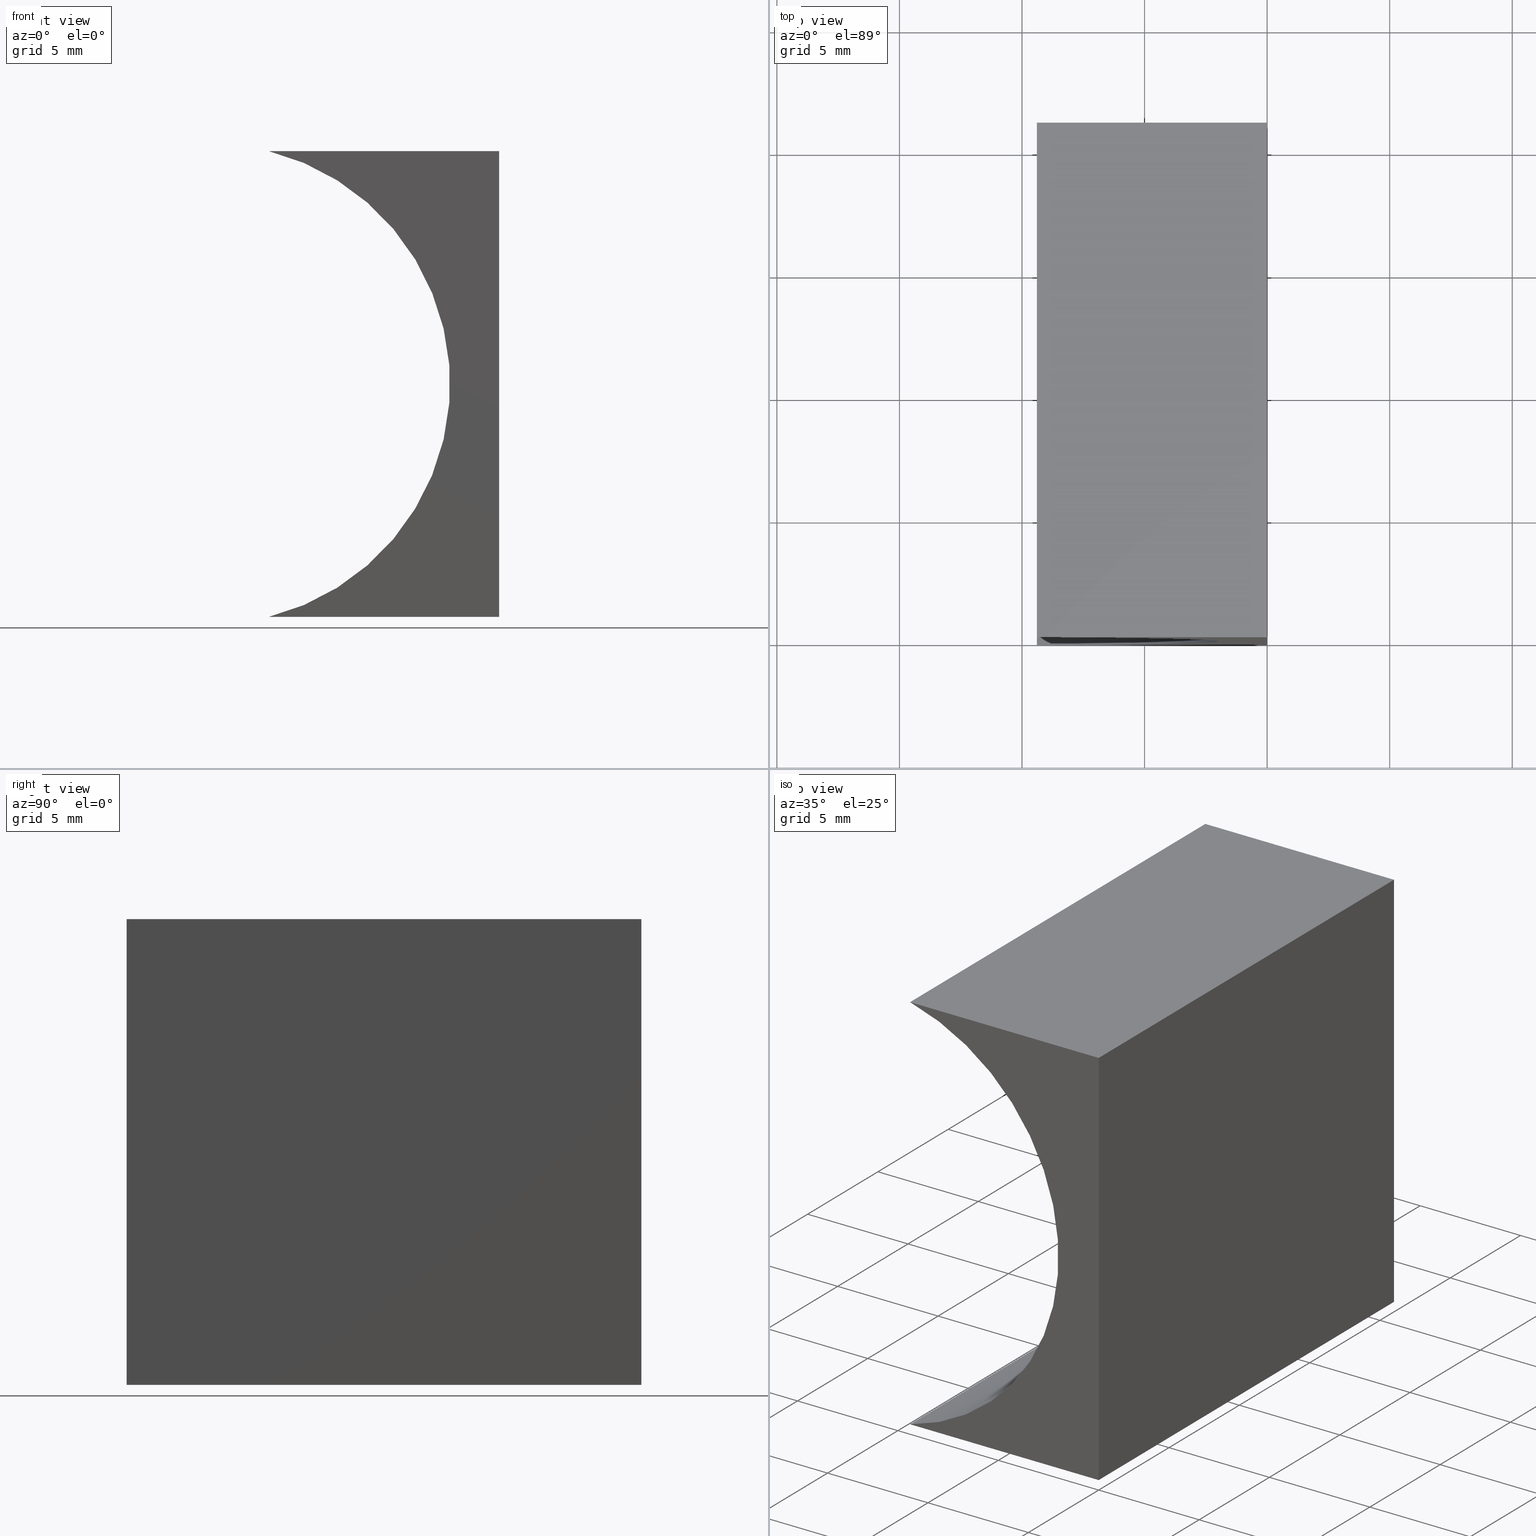
[diagram: canonical four-view strip — front | top / right | iso, engineering-drawing reading convention]
A machine part, canonical four-view strip (front | top / right | iso — engineering-drawing reading convention). The complete STEP part file that produces these views, byte-faithful:
ISO-10303-21;
HEADER;
FILE_DESCRIPTION (( 'STEP AP214' ),
    '1' );
FILE_NAME ('155344.STEP',
    '2019-06-28T02:36:14',
    ( 'user' ),
    ( '΢���й�' ),
    'SwSTEP 2.0',
    'SolidWorks 2016',
    '' );
FILE_SCHEMA (( 'AUTOMOTIVE_DESIGN' ));
ENDSEC;

DATA;
#1 = LINE ( 'NONE', #73, #2 ) ;
#2 = VECTOR ( 'NONE', #28, 1000.000000000000000 ) ;
#3 = VERTEX_POINT ( 'NONE', #93 ) ;
#4 = CARTESIAN_POINT ( 'NONE',  ( 0.0000000000000000000, 0.0000000000000000000, 0.0000000000000000000 ) ) ;
#5 = DIRECTION ( 'NONE',  ( 1.000000000000000000, -0.0000000000000000000, -3.693353510681764400E-016 ) ) ;
#6 = FACE_OUTER_BOUND ( 'NONE', #190, .T. ) ;
#7 = EDGE_LOOP ( 'NONE', ( #36, #173, #16, #20 ) ) ;
#8 = SURFACE_SIDE_STYLE ('',( #185 ) ) ;
#9 = DIRECTION ( 'NONE',  ( -0.0000000000000000000, -1.000000000000000000, -0.0000000000000000000 ) ) ;
#10 =( GEOMETRIC_REPRESENTATION_CONTEXT ( 3 ) GLOBAL_UNCERTAINTY_ASSIGNED_CONTEXT ( ( #51 ) ) GLOBAL_UNIT_ASSIGNED_CONTEXT ( ( #19, #32, #71 ) ) REPRESENTATION_CONTEXT ( 'NONE', 'WORKASPACE' ) );
#11 = DIRECTION ( 'NONE',  ( 1.000000000000000000, 0.0000000000000000000, -0.0000000000000000000 ) ) ;
#12 = ORIENTED_EDGE ( 'NONE', *, *, #199, .F. ) ;
#13 = CARTESIAN_POINT ( 'NONE',  ( -11.79999999999999900, 21.00000000000000000, 9.500000000000003600 ) ) ;
#14 = ORIENTED_EDGE ( 'NONE', *, *, #60, .F. ) ;
#15 = PRESENTATION_STYLE_ASSIGNMENT (( #127 ) ) ;
#16 = ORIENTED_EDGE ( 'NONE', *, *, #56, .T. ) ;
#17 = DIRECTION ( 'NONE',  ( -1.000000000000000000, 0.0000000000000000000, 3.693353510681765400E-016 ) ) ;
#18 = EDGE_CURVE ( 'NONE', #123, #200, #1, .T. ) ;
#19 =( LENGTH_UNIT ( ) NAMED_UNIT ( * ) SI_UNIT ( .MILLI., .METRE. ) );
#20 = ORIENTED_EDGE ( 'NONE', *, *, #158, .T. ) ;
#21 = CARTESIAN_POINT ( 'NONE',  ( 0.0000000000000000000, 0.0000000000000000000, 0.0000000000000000000 ) ) ;
#22 = ADVANCED_FACE ( 'NONE', ( #6 ), #46, .F. ) ;
#23 = STYLED_ITEM ( 'NONE', ( #84 ), #77 ) ;
#24 = DIRECTION ( 'NONE',  ( -0.0000000000000000000, -1.000000000000000000, -0.0000000000000000000 ) ) ;
#25 = ORIENTED_EDGE ( 'NONE', *, *, #174, .F. ) ;
#26 = CARTESIAN_POINT ( 'NONE',  ( 1.163414459189985500E-015, 0.0000000000000000000, 19.00000000000000000 ) ) ;
#27 = VECTOR ( 'NONE', #125, 1000.000000000000000 ) ;
#28 = DIRECTION ( 'NONE',  ( -0.0000000000000000000, -1.000000000000000000, -0.0000000000000000000 ) ) ;
#29 = ORIENTED_EDGE ( 'NONE', *, *, #143, .F. ) ;
#30 =( NAMED_UNIT ( * ) SI_UNIT ( $, .STERADIAN. ) SOLID_ANGLE_UNIT ( ) );
#31 = PRESENTATION_LAYER_ASSIGNMENT (  '', '', ( #34 ) ) ;
#32 =( NAMED_UNIT ( * ) PLANE_ANGLE_UNIT ( ) SI_UNIT ( $, .RADIAN. ) );
#33 = EDGE_LOOP ( 'NONE', ( #137, #194, #66, #155 ) ) ;
#34 = STYLED_ITEM ( 'NONE', ( #15 ), #177 ) ;
#35 = CARTESIAN_POINT ( 'NONE',  ( -11.79999999999999900, 0.0000000000000000000, 9.500000000000003600 ) ) ;
#36 = ORIENTED_EDGE ( 'NONE', *, *, #139, .T. ) ;
#37 = FILL_AREA_STYLE ('',( #162 ) ) ;
#38 = ORIENTED_EDGE ( 'NONE', *, *, #174, .T. ) ;
#39 = PRODUCT ( '155344', '155344', '', ( #64 ) ) ;
#40 = ADVANCED_FACE ( 'NONE', ( #76 ), #130, .F. ) ;
#41 = FACE_OUTER_BOUND ( 'NONE', #33, .T. ) ;
#42 = DIRECTION ( 'NONE',  ( -3.693353510681765400E-016, 0.0000000000000000000, -1.000000000000000000 ) ) ;
#43 = DIRECTION ( 'NONE',  ( 1.000000000000000000, -0.0000000000000000000, -3.693353510681764400E-016 ) ) ;
#44 = DIRECTION ( 'NONE',  ( -0.0000000000000000000, -1.000000000000000000, -0.0000000000000000000 ) ) ;
#45 = PLANE ( 'NONE',  #83 ) ;
#46 = PLANE ( 'NONE',  #167 ) ;
#47 = EDGE_CURVE ( 'NONE', #160, #63, #74, .T. ) ;
#48 = CARTESIAN_POINT ( 'NONE',  ( 0.0000000000000000000, 21.00000000000000000, 0.0000000000000000000 ) ) ;
#49 = FILL_AREA_STYLE_COLOUR ( '', #132 ) ;
#50 = ORIENTED_EDGE ( 'NONE', *, *, #158, .F. ) ;
#51 = UNCERTAINTY_MEASURE_WITH_UNIT (LENGTH_MEASURE( 1.000000000000000100E-005 ), #19, 'distance_accuracy_value', 'NONE');
#52 = DIRECTION ( 'NONE',  ( 0.0000000000000000000, 0.0000000000000000000, 1.000000000000000000 ) ) ;
#53 = VERTEX_POINT ( 'NONE', #88 ) ;
#54 = CARTESIAN_POINT ( 'NONE',  ( -9.393758116896808700, 0.0000000000000000000, 1.734723475976807100E-015 ) ) ;
#55 = APPLICATION_PROTOCOL_DEFINITION ( 'draft international standard', 'automotive_design', 1998, #140 ) ;
#56 = EDGE_CURVE ( 'NONE', #123, #150, #89, .T. ) ;
#57 = DIRECTION ( 'NONE',  ( 0.0000000000000000000, -0.0000000000000000000, 1.000000000000000000 ) ) ;
#58 = VERTEX_POINT ( 'NONE', #198 ) ;
#59 = PRODUCT_DEFINITION_CONTEXT ( 'detailed design', #140, 'design' ) ;
#60 = EDGE_CURVE ( 'NONE', #63, #200, #70, .T. ) ;
#61 = DIRECTION ( 'NONE',  ( -0.0000000000000000000, -1.000000000000000000, -0.0000000000000000000 ) ) ;
#62 = PRODUCT_DEFINITION_FORMATION_WITH_SPECIFIED_SOURCE ( '�κ�', '', #39, .NOT_KNOWN. ) ;
#63 = VERTEX_POINT ( 'NONE', #54 ) ;
#64 = PRODUCT_CONTEXT ( 'NONE', #65, 'mechanical' ) ;
#65 = APPLICATION_CONTEXT ( 'automotive_design' ) ;
#66 = ORIENTED_EDGE ( 'NONE', *, *, #56, .F. ) ;
#67 = ORIENTED_EDGE ( 'NONE', *, *, #18, .F. ) ;
#68 = AXIS2_PLACEMENT_3D ( 'NONE', #13, #61, #52 ) ;
#69 = DIRECTION ( 'NONE',  ( -0.0000000000000000000, -1.000000000000000000, -0.0000000000000000000 ) ) ;
#70 = CIRCLE ( 'NONE', #138, 9.800000000000000700 ) ;
#71 =( NAMED_UNIT ( * ) SI_UNIT ( $, .STERADIAN. ) SOLID_ANGLE_UNIT ( ) );
#72 = AXIS2_PLACEMENT_3D ( 'NONE', #116, #197, #126 ) ;
#73 = CARTESIAN_POINT ( 'NONE',  ( -9.393758116896805200, 21.00000000000000000, 19.00000000000000400 ) ) ;
#74 = LINE ( 'NONE', #87, #186 ) ;
#75 =( GEOMETRIC_REPRESENTATION_CONTEXT ( 3 ) GLOBAL_UNCERTAINTY_ASSIGNED_CONTEXT ( ( #108 ) ) GLOBAL_UNIT_ASSIGNED_CONTEXT ( ( #175, #157, #30 ) ) REPRESENTATION_CONTEXT ( 'NONE', 'WORKASPACE' ) );
#76 = FACE_OUTER_BOUND ( 'NONE', #192, .T. ) ;
#77 = ADVANCED_BREP_SHAPE_REPRESENTATION ( '155344', ( #177, #72 ), #95 ) ;
#78 = LINE ( 'NONE', #79, #117 ) ;
#79 = CARTESIAN_POINT ( 'NONE',  ( 0.0000000000000000000, 21.00000000000000000, 0.0000000000000000000 ) ) ;
#80 = LINE ( 'NONE', #21, #82 ) ;
#81 = COLOUR_RGB ( '',1.000000000000000000, 1.000000000000000000, 1.000000000000000000 ) ;
#82 = VECTOR ( 'NONE', #179, 1000.000000000000000 ) ;
#83 = AXIS2_PLACEMENT_3D ( 'NONE', #171, #149, #57 ) ;
#84 = PRESENTATION_STYLE_ASSIGNMENT (( #99 ) ) ;
#85 = VECTOR ( 'NONE', #5, 1000.000000000000000 ) ;
#86 = CARTESIAN_POINT ( 'NONE',  ( -9.393758116896805200, 0.0000000000000000000, 19.00000000000000400 ) ) ;
#87 = CARTESIAN_POINT ( 'NONE',  ( 0.0000000000000000000, 0.0000000000000000000, 0.0000000000000000000 ) ) ;
#88 = CARTESIAN_POINT ( 'NONE',  ( 0.0000000000000000000, 21.00000000000000000, 0.0000000000000000000 ) ) ;
#89 = LINE ( 'NONE', #97, #85 ) ;
#90 = DIRECTION ( 'NONE',  ( -1.000000000000000000, 0.0000000000000000000, 0.0000000000000000000 ) ) ;
#91 = DIRECTION ( 'NONE',  ( 0.0000000000000000000, 1.000000000000000000, 0.0000000000000000000 ) ) ;
#92 = FACE_OUTER_BOUND ( 'NONE', #169, .T. ) ;
#93 = CARTESIAN_POINT ( 'NONE',  ( 1.163414459189985500E-015, 0.0000000000000000000, 19.00000000000000000 ) ) ;
#94 = ORIENTED_EDGE ( 'NONE', *, *, #60, .T. ) ;
#95 =( GEOMETRIC_REPRESENTATION_CONTEXT ( 3 ) GLOBAL_UNCERTAINTY_ASSIGNED_CONTEXT ( ( #136 ) ) GLOBAL_UNIT_ASSIGNED_CONTEXT ( ( #112, #191, #110 ) ) REPRESENTATION_CONTEXT ( 'NONE', 'WORKASPACE' ) );
#96 = MECHANICAL_DESIGN_GEOMETRIC_PRESENTATION_REPRESENTATION (  '', ( #23 ), #10 ) ;
#97 = CARTESIAN_POINT ( 'NONE',  ( 1.163414459189985500E-015, 21.00000000000000000, 19.00000000000000000 ) ) ;
#98 = LINE ( 'NONE', #48, #146 ) ;
#99 = SURFACE_STYLE_USAGE ( .BOTH. , #8 ) ;
#100 = ADVANCED_FACE ( 'NONE', ( #41 ), #170, .F. ) ;
#101 = CARTESIAN_POINT ( 'NONE',  ( 1.163414459189985500E-015, 21.00000000000000000, 19.00000000000000000 ) ) ;
#102 = DIRECTION ( 'NONE',  ( -1.000000000000000000, 0.0000000000000000000, 6.123233995736767300E-017 ) ) ;
#103 = VECTOR ( 'NONE', #135, 1000.000000000000000 ) ;
#104 = ORIENTED_EDGE ( 'NONE', *, *, #196, .F. ) ;
#105 = CARTESIAN_POINT ( 'NONE',  ( 0.0000000000000000000, 21.00000000000000000, 0.0000000000000000000 ) ) ;
#106 = LINE ( 'NONE', #201, #103 ) ;
#107 = CARTESIAN_POINT ( 'NONE',  ( -9.393758116896805200, 21.00000000000000000, 19.00000000000000400 ) ) ;
#108 = UNCERTAINTY_MEASURE_WITH_UNIT (LENGTH_MEASURE( 1.000000000000000100E-005 ), #175, 'distance_accuracy_value', 'NONE');
#109 = EDGE_CURVE ( 'NONE', #3, #160, #80, .T. ) ;
#110 =( NAMED_UNIT ( * ) SI_UNIT ( $, .STERADIAN. ) SOLID_ANGLE_UNIT ( ) );
#111 = LINE ( 'NONE', #101, #128 ) ;
#112 =( LENGTH_UNIT ( ) NAMED_UNIT ( * ) SI_UNIT ( .MILLI., .METRE. ) );
#113 = LINE ( 'NONE', #181, #27 ) ;
#114 = CYLINDRICAL_SURFACE ( 'NONE', #152, 9.800000000000000700 ) ;
#115 = ORIENTED_EDGE ( 'NONE', *, *, #109, .T. ) ;
#116 = CARTESIAN_POINT ( 'NONE',  ( 0.0000000000000000000, 0.0000000000000000000, 0.0000000000000000000 ) ) ;
#117 = VECTOR ( 'NONE', #124, 1000.000000000000000 ) ;
#118 = ADVANCED_FACE ( 'NONE', ( #92 ), #114, .F. ) ;
#119 = AXIS2_PLACEMENT_3D ( 'NONE', #159, #102, #188 ) ;
#120 = SURFACE_STYLE_FILL_AREA ( #178 ) ;
#121 = ORIENTED_EDGE ( 'NONE', *, *, #139, .F. ) ;
#122 = FACE_OUTER_BOUND ( 'NONE', #165, .T. ) ;
#123 = VERTEX_POINT ( 'NONE', #107 ) ;
#124 = DIRECTION ( 'NONE',  ( -6.123233995736766000E-017, -0.0000000000000000000, -1.000000000000000000 ) ) ;
#125 = DIRECTION ( 'NONE',  ( -1.000000000000000000, 0.0000000000000000000, 0.0000000000000000000 ) ) ;
#126 = DIRECTION ( 'NONE',  ( 1.000000000000000000, 0.0000000000000000000, 0.0000000000000000000 ) ) ;
#127 = SURFACE_STYLE_USAGE ( .BOTH. , #145 ) ;
#128 = VECTOR ( 'NONE', #44, 1000.000000000000000 ) ;
#129 = MECHANICAL_DESIGN_GEOMETRIC_PRESENTATION_REPRESENTATION (  '', ( #34 ), #75 ) ;
#130 = PLANE ( 'NONE',  #119 ) ;
#131 = PRODUCT_DEFINITION_SHAPE ( 'NONE', 'NONE',  #166 ) ;
#132 = COLOUR_RGB ( '',1.000000000000000000, 1.000000000000000000, 1.000000000000000000 ) ;
#133 = ORIENTED_EDGE ( 'NONE', *, *, #147, .T. ) ;
#134 = VECTOR ( 'NONE', #43, 1000.000000000000000 ) ;
#135 = DIRECTION ( 'NONE',  ( -0.0000000000000000000, -1.000000000000000000, -0.0000000000000000000 ) ) ;
#136 = UNCERTAINTY_MEASURE_WITH_UNIT (LENGTH_MEASURE( 1.000000000000000100E-005 ), #112, 'distance_accuracy_value', 'NONE');
#137 = ORIENTED_EDGE ( 'NONE', *, *, #196, .T. ) ;
#138 = AXIS2_PLACEMENT_3D ( 'NONE', #144, #24, #184 ) ;
#139 = EDGE_CURVE ( 'NONE', #53, #58, #113, .T. ) ;
#140 = APPLICATION_CONTEXT ( 'automotive_design' ) ;
#141 = LINE ( 'NONE', #26, #134 ) ;
#142 = ORIENTED_EDGE ( 'NONE', *, *, #109, .F. ) ;
#143 = EDGE_CURVE ( 'NONE', #58, #63, #106, .T. ) ;
#144 = CARTESIAN_POINT ( 'NONE',  ( -11.79999999999999900, 0.0000000000000000000, 9.500000000000003600 ) ) ;
#145 = SURFACE_SIDE_STYLE ('',( #120 ) ) ;
#146 = VECTOR ( 'NONE', #69, 1000.000000000000000 ) ;
#147 = EDGE_CURVE ( 'NONE', #150, #3, #111, .T. ) ;
#148 = FACE_OUTER_BOUND ( 'NONE', #7, .T. ) ;
#149 = DIRECTION ( 'NONE',  ( 0.0000000000000000000, 1.000000000000000000, 0.0000000000000000000 ) ) ;
#150 = VERTEX_POINT ( 'NONE', #203 ) ;
#151 = PRESENTATION_LAYER_ASSIGNMENT (  '', '', ( #23 ) ) ;
#152 = AXIS2_PLACEMENT_3D ( 'NONE', #195, #9, #161 ) ;
#153 = CLOSED_SHELL ( 'NONE', ( #22, #118, #100, #40, #182, #168 ) ) ;
#154 = AXIS2_PLACEMENT_3D ( 'NONE', #35, #91, #163 ) ;
#155 = ORIENTED_EDGE ( 'NONE', *, *, #18, .T. ) ;
#156 = SHAPE_DEFINITION_REPRESENTATION ( #131, #77 ) ;
#157 =( NAMED_UNIT ( * ) PLANE_ANGLE_UNIT ( ) SI_UNIT ( $, .RADIAN. ) );
#158 = EDGE_CURVE ( 'NONE', #150, #53, #78, .T. ) ;
#159 = CARTESIAN_POINT ( 'NONE',  ( 0.0000000000000000000, 21.00000000000000000, 0.0000000000000000000 ) ) ;
#160 = VERTEX_POINT ( 'NONE', #4 ) ;
#161 = DIRECTION ( 'NONE',  ( 0.0000000000000000000, 0.0000000000000000000, -1.000000000000000000 ) ) ;
#162 = FILL_AREA_STYLE_COLOUR ( '', #81 ) ;
#163 = DIRECTION ( 'NONE',  ( 0.0000000000000000000, -0.0000000000000000000, 1.000000000000000000 ) ) ;
#164 = PLANE ( 'NONE',  #154 ) ;
#165 = EDGE_LOOP ( 'NONE', ( #183, #142, #104, #14 ) ) ;
#166 = PRODUCT_DEFINITION ( 'δ֪', '', #62, #59 ) ;
#167 = AXIS2_PLACEMENT_3D ( 'NONE', #105, #172, #11 ) ;
#168 = ADVANCED_FACE ( 'NONE', ( #122 ), #164, .F. ) ;
#169 = EDGE_LOOP ( 'NONE', ( #94, #67, #12, #187 ) ) ;
#170 = PLANE ( 'NONE',  #204 ) ;
#171 = CARTESIAN_POINT ( 'NONE',  ( -11.79999999999999900, 21.00000000000000000, 9.500000000000003600 ) ) ;
#172 = DIRECTION ( 'NONE',  ( 0.0000000000000000000, -0.0000000000000000000, 1.000000000000000000 ) ) ;
#173 = ORIENTED_EDGE ( 'NONE', *, *, #199, .T. ) ;
#174 = EDGE_CURVE ( 'NONE', #53, #160, #98, .T. ) ;
#175 =( LENGTH_UNIT ( ) NAMED_UNIT ( * ) SI_UNIT ( .MILLI., .METRE. ) );
#176 = APPLICATION_PROTOCOL_DEFINITION ( 'draft international standard', 'automotive_design', 1998, #65 ) ;
#177 = MANIFOLD_SOLID_BREP ( '͹̨-����1', #153 ) ;
#178 = FILL_AREA_STYLE ('',( #49 ) ) ;
#179 = DIRECTION ( 'NONE',  ( -6.123233995736766000E-017, -0.0000000000000000000, -1.000000000000000000 ) ) ;
#180 = PRODUCT_RELATED_PRODUCT_CATEGORY ( 'part', '', ( #39 ) ) ;
#181 = CARTESIAN_POINT ( 'NONE',  ( 0.0000000000000000000, 21.00000000000000000, 0.0000000000000000000 ) ) ;
#182 = ADVANCED_FACE ( 'NONE', ( #148 ), #45, .T. ) ;
#183 = ORIENTED_EDGE ( 'NONE', *, *, #47, .F. ) ;
#184 = DIRECTION ( 'NONE',  ( 0.0000000000000000000, 0.0000000000000000000, 1.000000000000000000 ) ) ;
#185 = SURFACE_STYLE_FILL_AREA ( #37 ) ;
#186 = VECTOR ( 'NONE', #90, 1000.000000000000000 ) ;
#187 = ORIENTED_EDGE ( 'NONE', *, *, #143, .T. ) ;
#188 = DIRECTION ( 'NONE',  ( 6.123233995736767300E-017, 0.0000000000000000000, 1.000000000000000000 ) ) ;
#189 = CIRCLE ( 'NONE', #68, 9.800000000000000700 ) ;
#190 = EDGE_LOOP ( 'NONE', ( #202, #29, #121, #38 ) ) ;
#191 =( NAMED_UNIT ( * ) PLANE_ANGLE_UNIT ( ) SI_UNIT ( $, .RADIAN. ) );
#192 = EDGE_LOOP ( 'NONE', ( #115, #25, #50, #133 ) ) ;
#193 = CARTESIAN_POINT ( 'NONE',  ( 1.163414459189985500E-015, 21.00000000000000000, 19.00000000000000000 ) ) ;
#194 = ORIENTED_EDGE ( 'NONE', *, *, #147, .F. ) ;
#195 = CARTESIAN_POINT ( 'NONE',  ( -11.79999999999999900, 21.00000000000000000, 9.500000000000003600 ) ) ;
#196 = EDGE_CURVE ( 'NONE', #200, #3, #141, .T. ) ;
#197 = DIRECTION ( 'NONE',  ( 0.0000000000000000000, 0.0000000000000000000, 1.000000000000000000 ) ) ;
#198 = CARTESIAN_POINT ( 'NONE',  ( -9.393758116896808700, 21.00000000000000000, 1.734723475976807100E-015 ) ) ;
#199 = EDGE_CURVE ( 'NONE', #58, #123, #189, .T. ) ;
#200 = VERTEX_POINT ( 'NONE', #86 ) ;
#201 = CARTESIAN_POINT ( 'NONE',  ( -9.393758116896808700, 21.00000000000000000, 1.734723475976807100E-015 ) ) ;
#202 = ORIENTED_EDGE ( 'NONE', *, *, #47, .T. ) ;
#203 = CARTESIAN_POINT ( 'NONE',  ( 1.163414459189985500E-015, 21.00000000000000000, 19.00000000000000000 ) ) ;
#204 = AXIS2_PLACEMENT_3D ( 'NONE', #193, #42, #17 ) ;
ENDSEC;
END-ISO-10303-21;
